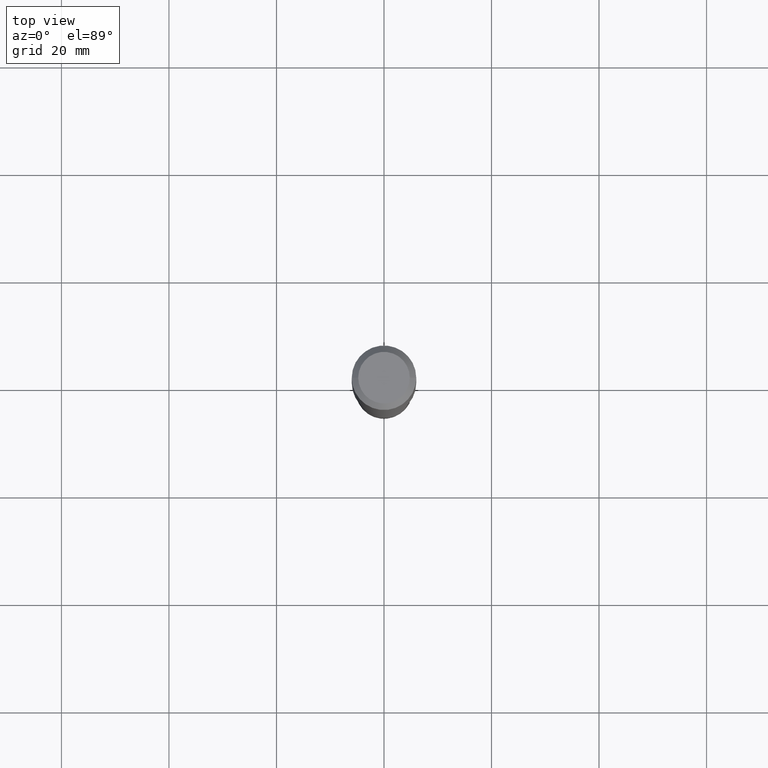
[diagram: clean part render]
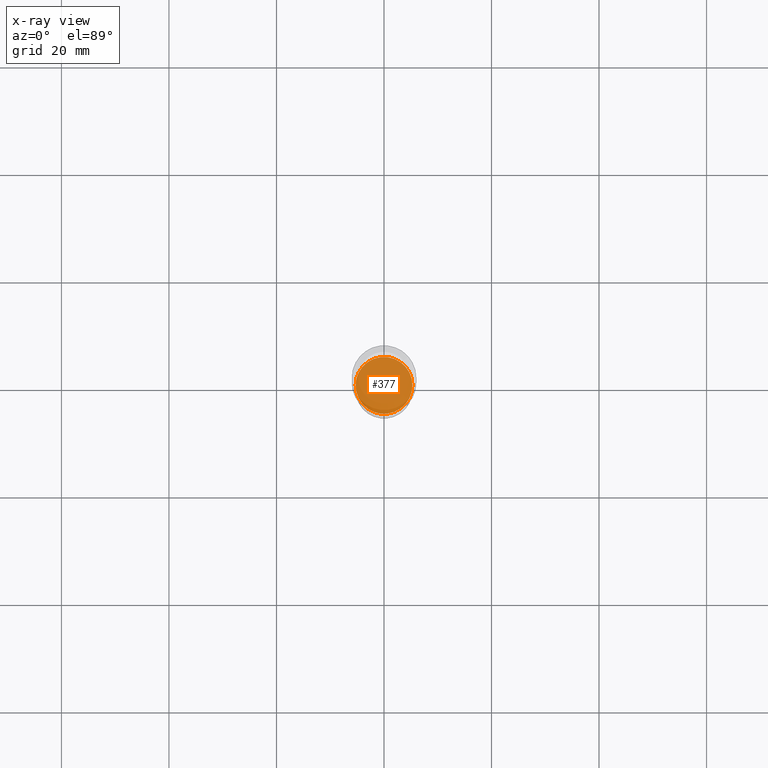
[diagram: x-ray — body ghosted, one internal face saturated and labeled with its STEP entity id]
A machine part, top view, then the same camera in x-ray: the body is ghosted and one INTERNAL B-rep face — a face not visible from any outside direction — is saturated and labeled: STEP entity #377.
In plain terms, the highlighted planar face has unit normal (-0, 0, 1).
Its self-contained STEP definition (entity closure, byte-faithful):
#9 = CARTESIAN_POINT ( 'NONE',  ( 7.991792058613026945E-29, -1.141016101533940013E-14, -3.268000000000000238 ) ) ;
#20 = CARTESIAN_POINT ( 'NONE',  ( 0.2081500000000000017, -1.286366469669979686E-14, -3.268000000000000238 ) ) ;
#28 = EDGE_CURVE ( 'NONE', #189, #379, #330, .T. ) ;
#102 = EDGE_LOOP ( 'NONE', ( #303, #211 ) ) ;
#189 = VERTEX_POINT ( 'NONE', #484 ) ;
#205 = EDGE_CURVE ( 'NONE', #379, #189, #348, .T. ) ;
#211 = ORIENTED_EDGE ( 'NONE', *, *, #28, .F. ) ;
#218 = DIRECTION ( 'NONE',  ( 1.000000000000000000, -6.982962677686265922E-15, 4.876176775795935793E-29 ) ) ;
#231 = DIRECTION ( 'NONE',  ( 1.000000000000000000, -6.982962677686268288E-15, 0.000000000000000000 ) ) ;
#239 = DIRECTION ( 'NONE',  ( -2.445468806185136597E-29, 3.491481338843145583E-15, 1.000000000000000000 ) ) ;
#258 = AXIS2_PLACEMENT_3D ( 'NONE', #472, #239, #231 ) ;
#296 = FACE_OUTER_BOUND ( 'NONE', #102, .T. ) ;
#303 = ORIENTED_EDGE ( 'NONE', *, *, #205, .F. ) ;
#330 = CIRCLE ( 'NONE', #258, 0.2081500000000000017 ) ;
#339 = CARTESIAN_POINT ( 'NONE',  ( 7.991792058613026945E-29, -1.141016101533940013E-14, -3.268000000000000238 ) ) ;
#348 = CIRCLE ( 'NONE', #430, 0.2081500000000000017 ) ;
#377 = ADVANCED_FACE ( 'NONE', ( #296 ), #498, .F. ) ;
#379 = VERTEX_POINT ( 'NONE', #20 ) ;
#383 = DIRECTION ( 'NONE',  ( -2.438088387897960049E-29, 3.491481338843145188E-15, 1.000000000000000000 ) ) ;
#402 = DIRECTION ( 'NONE',  ( 1.000000000000000000, -6.982962677686268288E-15, 0.000000000000000000 ) ) ;
#412 = DIRECTION ( 'NONE',  ( -2.445468806185136597E-29, 3.491481338843145583E-15, 1.000000000000000000 ) ) ;
#424 = AXIS2_PLACEMENT_3D ( 'NONE', #339, #383, #218 ) ;
#430 = AXIS2_PLACEMENT_3D ( 'NONE', #9, #412, #402 ) ;
#472 = CARTESIAN_POINT ( 'NONE',  ( 7.991792058613026945E-29, -1.141016101533940013E-14, -3.268000000000000238 ) ) ;
#484 = CARTESIAN_POINT ( 'NONE',  ( -0.2081500000000000017, -9.928517083680639198E-15, -3.268000000000000238 ) ) ;
#498 = PLANE ( 'NONE',  #424 ) ;